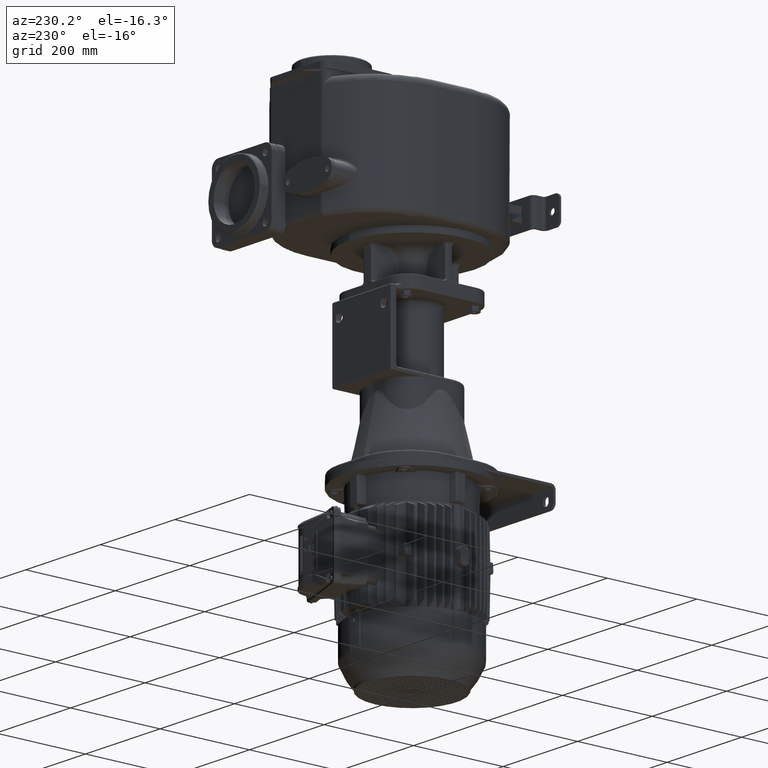
[diagram: clean part render]
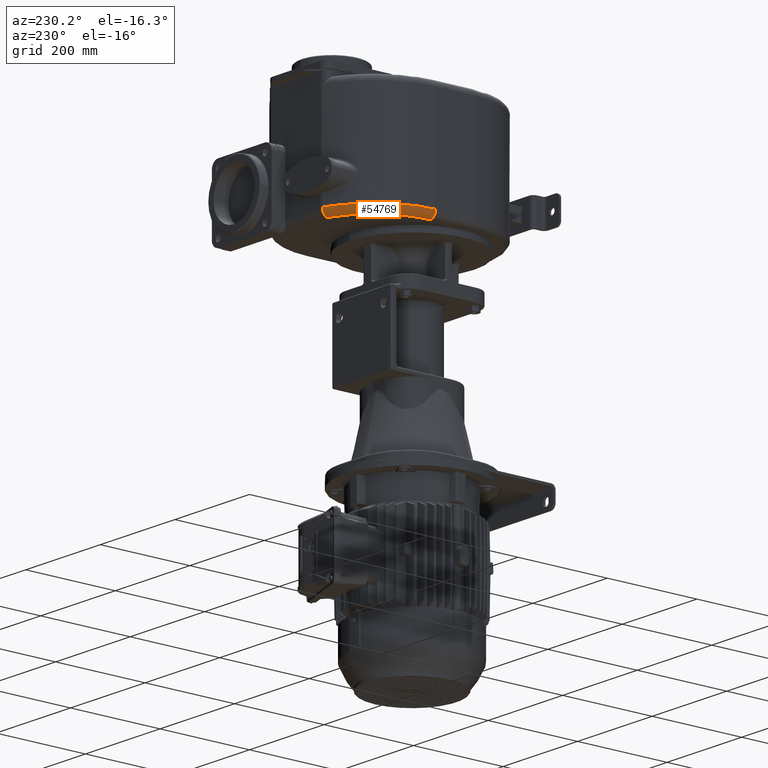
[diagram: same view with one face highlighted and labeled with its STEP entity id]
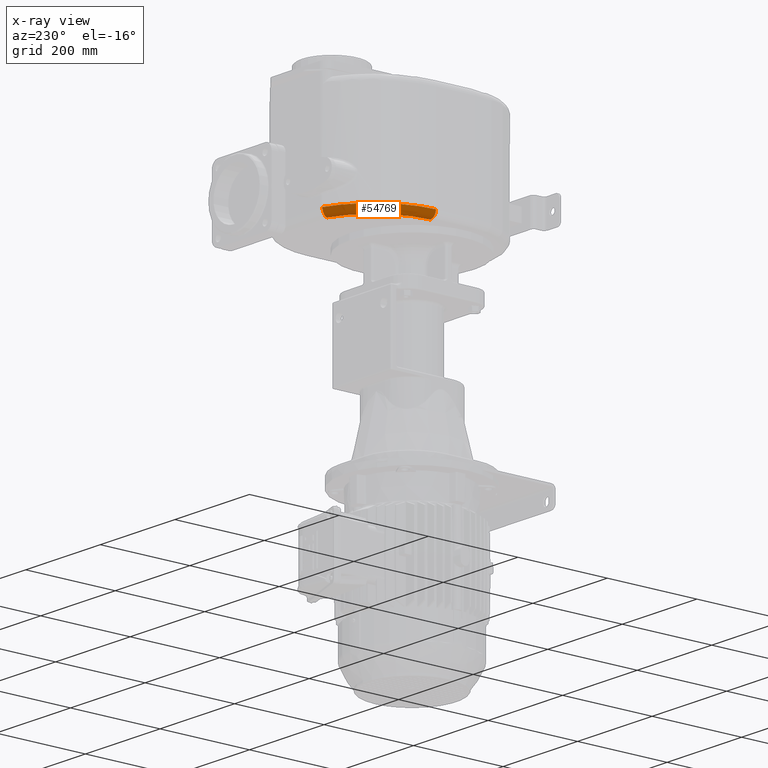
[diagram: x-ray of the same camera — body ghosted, the highlighted face saturated]
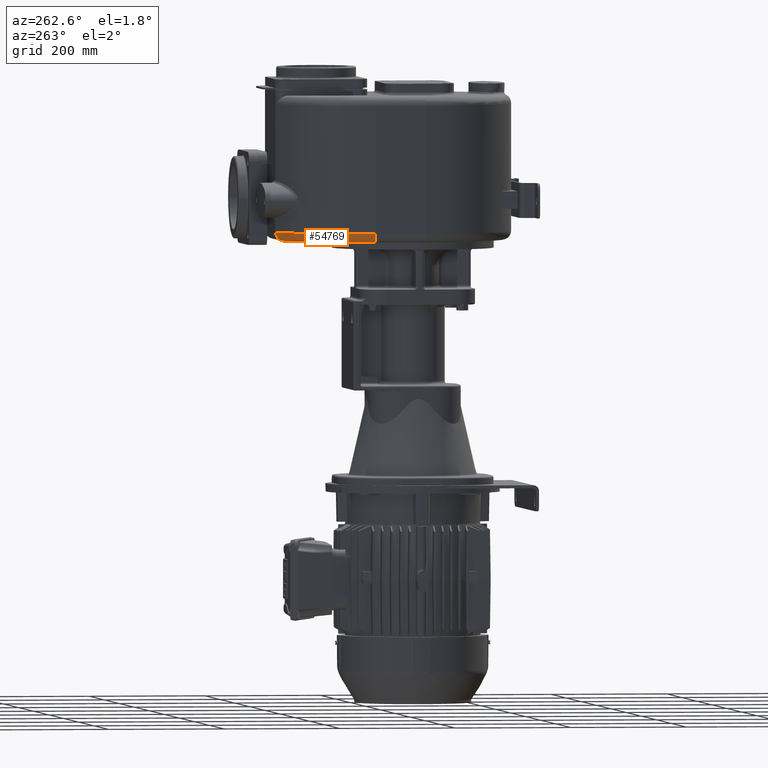
[diagram: same view with one face highlighted and labeled with its STEP entity id]
A machine part, auxiliary view. The second image highlights one B-rep face of the part: STEP entity #54769.
The next image is the same camera in x-ray: the body ghosted, the highlighted face saturated — about 0% of this face is hidden behind the body in this view.
A second angle (auxiliary view) of the same face is appended — the face is thin or edge-on in the first view.
In plain terms, the highlighted toroidal blend (fillet) surface has major radius 152 mm and minor (blend) radius 15 mm.
Its self-contained STEP definition (entity closure, byte-faithful):
#747=CARTESIAN_POINT('',(0.E0,2.557779489814E2,-7.E1));
#748=DIRECTION('',(0.E0,0.E0,-1.E0));
#749=DIRECTION('',(-1.E0,0.E0,0.E0));
#750=AXIS2_PLACEMENT_3D('',#747,#748,#749);
#785=CARTESIAN_POINT('',(-4.8E1,4.E2,-5.5E1));
#786=DIRECTION('',(9.488292830168E-1,3.157894736842E-1,0.E0));
#787=DIRECTION('',(0.E0,0.E0,-1.E0));
#788=AXIS2_PLACEMENT_3D('',#785,#786,#787);
#2280=CARTESIAN_POINT('',(-1.52E2,2.557779489814E2,-5.5E1));
#2281=DIRECTION('',(0.E0,1.E0,0.E0));
#2282=DIRECTION('',(0.E0,0.E0,-1.E0));
#2283=AXIS2_PLACEMENT_3D('',#2280,#2281,#2282);
#2422=CARTESIAN_POINT('',(0.E0,2.557779489814E2,-5.5E1));
#2423=DIRECTION('',(0.E0,0.E0,-1.E0));
#2424=DIRECTION('',(-1.E0,0.E0,0.E0));
#2425=AXIS2_PLACEMENT_3D('',#2422,#2423,#2424);
#43826=CARTESIAN_POINT('',(-4.8E1,4.E2,-7.E1));
#43828=VERTEX_POINT('',#43826);
#43844=CARTESIAN_POINT('',(-1.52E2,2.557779489814E2,-7.E1));
#43845=VERTEX_POINT('',#43844);
#43846=CARTESIAN_POINT('',(-1.67E2,2.557779489814E2,-5.5E1));
#43847=VERTEX_POINT('',#43846);
#43848=CARTESIAN_POINT('',(-5.273684210526E1,4.142324392453E2,-5.5E1));
#43849=VERTEX_POINT('',#43848);
#54757=CARTESIAN_POINT('',(0.E0,2.557779489814E2,-5.5E1));
#54758=DIRECTION('',(0.E0,0.E0,-1.E0));
#54759=DIRECTION('',(-9.999851377099E-1,-5.452005074595E-3,0.E0));
#54760=AXIS2_PLACEMENT_3D('',#54757,#54758,#54759);
#54761=TOROIDAL_SURFACE('',#54760,1.52E2,1.5E1);
#54763=ORIENTED_EDGE('',*,*,#54762,.F.);
#54764=ORIENTED_EDGE('',*,*,#54749,.F.);
#54765=ORIENTED_EDGE('',*,*,#53035,.T.);
#54766=ORIENTED_EDGE('',*,*,#53073,.T.);
#54767=EDGE_LOOP('',(#54763,#54764,#54765,#54766));
#54768=FACE_OUTER_BOUND('',#54767,.F.);
#54769=ADVANCED_FACE('',(#54768),#54761,.T.);
#751=CIRCLE('',#750,1.52E2);
#789=CIRCLE('',#788,1.5E1);
#2284=CIRCLE('',#2283,1.5E1);
#2426=CIRCLE('',#2425,1.67E2);
#53035=EDGE_CURVE('',#43845,#43828,#751,.T.);
#53073=EDGE_CURVE('',#43828,#43849,#789,.T.);
#54749=EDGE_CURVE('',#43845,#43847,#2284,.T.);
#54762=EDGE_CURVE('',#43847,#43849,#2426,.T.);